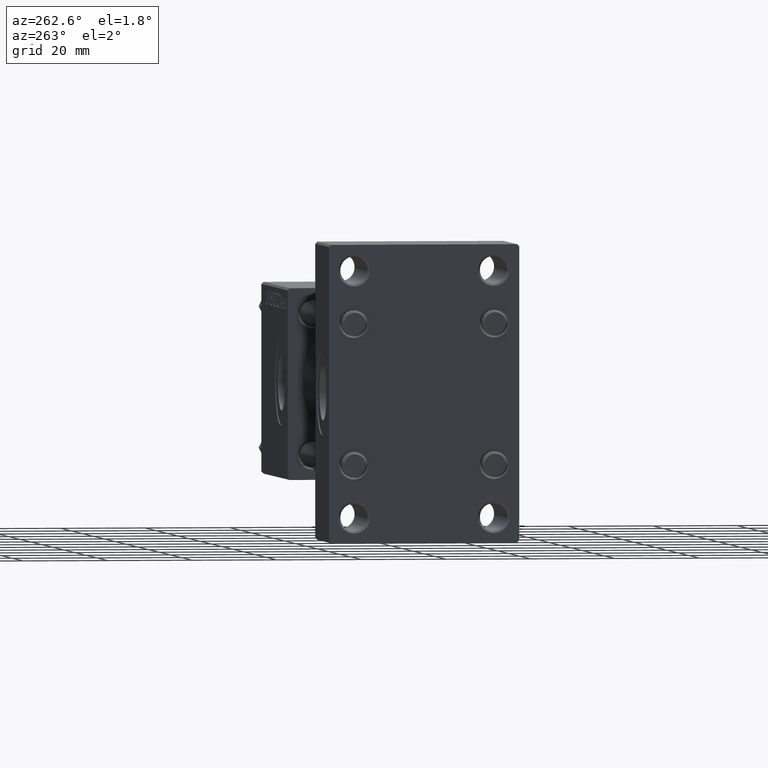
[diagram: clean part render]
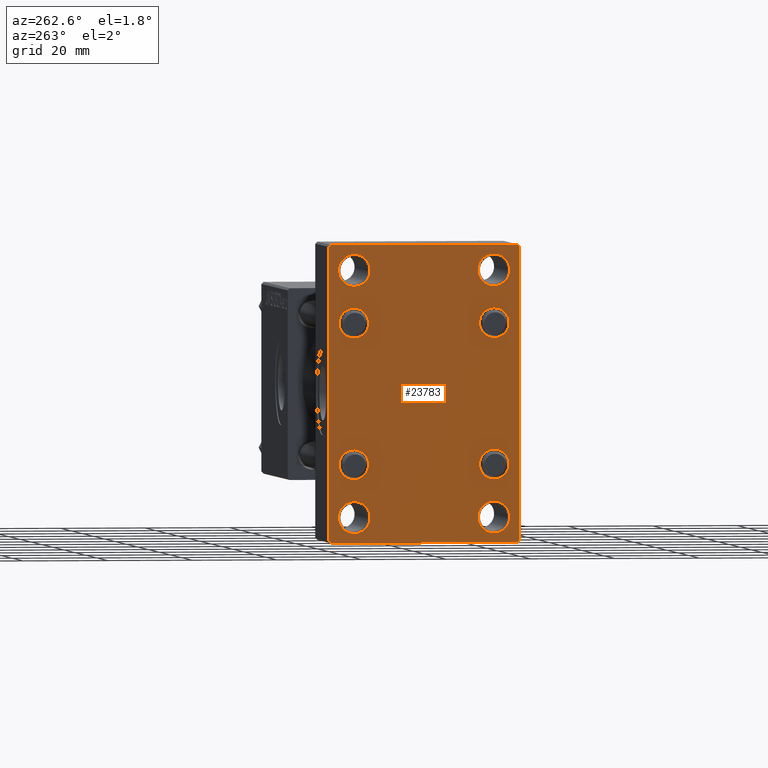
[diagram: same view with one face highlighted and labeled with its STEP entity id]
A machine part, auxiliary view. The second image highlights one B-rep face of the part: STEP entity #23783.
In plain terms, the highlighted planar face has unit normal (-1, 0, 0).
Its self-contained STEP definition (entity closure, byte-faithful):
#120 = AXIS2_PLACEMENT_3D ( 'NONE', #49179, #10794, #15302 ) ;
#330 = EDGE_CURVE ( 'NONE', #11849, #14925, #11964, .T. ) ;
#489 = ORIENTED_EDGE ( 'NONE', *, *, #7855, .T. ) ;
#571 = DIRECTION ( 'NONE',  ( 1.000000000000000000, -0.000000000000000000, 0.000000000000000000 ) ) ;
#663 = CIRCLE ( 'NONE', #28907, 3.749999999999975575 ) ;
#1625 = EDGE_CURVE ( 'NONE', #45959, #25354, #13164, .T. ) ;
#1691 = CIRCLE ( 'NONE', #44467, 3.750000000000044853 ) ;
#1809 = CIRCLE ( 'NONE', #45368, 3.499999999999996003 ) ;
#1812 = FACE_OUTER_BOUND ( 'NONE', #46587, .T. ) ;
#1888 = CARTESIAN_POINT ( 'NONE',  ( 0.000000000000000000, -16.50000000000000711, 28.99999999999998934 ) ) ;
#2526 = EDGE_LOOP ( 'NONE', ( #8048, #39668 ) ) ;
#3007 = CIRCLE ( 'NONE', #36900, 3.499999999999996003 ) ;
#3100 = CARTESIAN_POINT ( 'NONE',  ( 0.000000000000000000, -16.59999999999999076, 20.10000000000000853 ) ) ;
#3126 = EDGE_CURVE ( 'NONE', #14925, #11849, #49965, .T. ) ;
#3517 = VERTEX_POINT ( 'NONE', #14465 ) ;
#3993 = ORIENTED_EDGE ( 'NONE', *, *, #18883, .T. ) ;
#4307 = CARTESIAN_POINT ( 'NONE',  ( 0.000000000000000000, -16.59999999999999076, 16.60000000000000853 ) ) ;
#4829 = CARTESIAN_POINT ( 'NONE',  ( 0.000000000000000000, 28.50000000000030909, 28.49999999999952038 ) ) ;
#5931 = EDGE_CURVE ( 'NONE', #45959, #41223, #21803, .T. ) ;
#6291 = VECTOR ( 'NONE', #11204, 1000.000000000000000 ) ;
#6306 = AXIS2_PLACEMENT_3D ( 'NONE', #26524, #7312, #34336 ) ;
#6469 = CARTESIAN_POINT ( 'NONE',  ( 0.000000000000000000, 16.59999999999999787, -13.10000000000000675 ) ) ;
#6591 = CIRCLE ( 'NONE', #21103, 3.499999999999996003 ) ;
#6609 = VERTEX_POINT ( 'NONE', #47861 ) ;
#6887 = EDGE_LOOP ( 'NONE', ( #10444, #38621 ) ) ;
#6942 = ORIENTED_EDGE ( 'NONE', *, *, #7480, .T. ) ;
#7010 = ORIENTED_EDGE ( 'NONE', *, *, #20053, .T. ) ;
#7049 = AXIS2_PLACEMENT_3D ( 'NONE', #31426, #46855, #27651 ) ;
#7312 = DIRECTION ( 'NONE',  ( 1.000000000000000000, -0.000000000000000000, 0.000000000000000000 ) ) ;
#7318 = DIRECTION ( 'NONE',  ( -0.000000000000000000, 0.000000000000000000, 1.000000000000000000 ) ) ;
#7349 = EDGE_CURVE ( 'NONE', #36578, #41673, #6591, .T. ) ;
#7421 = VERTEX_POINT ( 'NONE', #10858 ) ;
#7480 = EDGE_CURVE ( 'NONE', #8559, #3517, #41651, .T. ) ;
#7523 = CIRCLE ( 'NONE', #41428, 3.499999999999996003 ) ;
#7855 = EDGE_CURVE ( 'NONE', #14047, #22783, #22713, .T. ) ;
#8048 = ORIENTED_EDGE ( 'NONE', *, *, #3126, .T. ) ;
#8218 = DIRECTION ( 'NONE',  ( 0.000000000000000000, -0.7071067811865426878, 0.7071067811865524577 ) ) ;
#8350 = AXIS2_PLACEMENT_3D ( 'NONE', #13451, #34343, #7318 ) ;
#8559 = VERTEX_POINT ( 'NONE', #12280 ) ;
#8766 = DIRECTION ( 'NONE',  ( 0.000000000000000000, 0.000000000000000000, 1.000000000000000000 ) ) ;
#9375 = VECTOR ( 'NONE', #13877, 1000.000000000000000 ) ;
#9396 = FACE_BOUND ( 'NONE', #6887, .T. ) ;
#9772 = DIRECTION ( 'NONE',  ( 1.000000000000000000, -0.000000000000000000, 0.000000000000000000 ) ) ;
#9808 = CARTESIAN_POINT ( 'NONE',  ( 0.000000000000000000, -16.59999999999999076, -20.10000000000000497 ) ) ;
#9951 = EDGE_CURVE ( 'NONE', #32112, #6609, #1691, .T. ) ;
#10106 = ORIENTED_EDGE ( 'NONE', *, *, #9951, .T. ) ;
#10109 = CARTESIAN_POINT ( 'NONE',  ( 0.000000000000000000, 16.49999999999999289, -25.25000000000003553 ) ) ;
#10271 = ORIENTED_EDGE ( 'NONE', *, *, #41743, .T. ) ;
#10364 = CARTESIAN_POINT ( 'NONE',  ( -0.000000000000000000, -28.50000000000015632, 28.49999999999976197 ) ) ;
#10394 = FACE_BOUND ( 'NONE', #27575, .T. ) ;
#10435 = DIRECTION ( 'NONE',  ( 0.000000000000000000, 0.000000000000000000, 1.000000000000000000 ) ) ;
#10444 = ORIENTED_EDGE ( 'NONE', *, *, #39589, .T. ) ;
#10586 = ORIENTED_EDGE ( 'NONE', *, *, #34772, .T. ) ;
#10794 = DIRECTION ( 'NONE',  ( 1.000000000000000000, -0.000000000000000000, 0.000000000000000000 ) ) ;
#10858 = CARTESIAN_POINT ( 'NONE',  ( 0.000000000000000000, 16.59999999999999787, -20.10000000000000142 ) ) ;
#10998 = CIRCLE ( 'NONE', #46472, 3.499999999999996003 ) ;
#11138 = CIRCLE ( 'NONE', #26446, 3.499999999999996003 ) ;
#11204 = DIRECTION ( 'NONE',  ( 0.000000000000000000, -1.000000000000000000, -1.541976423090495387E-16 ) ) ;
#11785 = ORIENTED_EDGE ( 'NONE', *, *, #43939, .T. ) ;
#11849 = VERTEX_POINT ( 'NONE', #17125 ) ;
#11964 = CIRCLE ( 'NONE', #6306, 3.749999999999972022 ) ;
#12257 = CIRCLE ( 'NONE', #29166, 3.749999999999972022 ) ;
#12280 = CARTESIAN_POINT ( 'NONE',  ( 0.000000000000000000, 22.50000000000000355, 34.49999999999999289 ) ) ;
#12567 = CARTESIAN_POINT ( 'NONE',  ( 0.000000000000000000, 16.59999999999999787, 20.10000000000000142 ) ) ;
#12735 = CARTESIAN_POINT ( 'NONE',  ( 0.000000000000000000, 16.49999999999999289, 32.75000000000003553 ) ) ;
#13164 = LINE ( 'NONE', #10364, #21722 ) ;
#13451 = CARTESIAN_POINT ( 'NONE',  ( 0.000000000000000000, 0.000000000000000000, 0.000000000000000000 ) ) ;
#13549 = CARTESIAN_POINT ( 'NONE',  ( 0.000000000000000000, 16.49999999999999289, -29.00000000000000711 ) ) ;
#13877 = DIRECTION ( 'NONE',  ( 0.000000000000000000, -1.000000000000000000, -1.541976423090495387E-16 ) ) ;
#14047 = VERTEX_POINT ( 'NONE', #23000 ) ;
#14465 = CARTESIAN_POINT ( 'NONE',  ( 0.000000000000000000, 22.50000000000000355, -34.49999999999999289 ) ) ;
#14589 = DIRECTION ( 'NONE',  ( 1.000000000000000000, -0.000000000000000000, 0.000000000000000000 ) ) ;
#14824 = DIRECTION ( 'NONE',  ( 1.000000000000000000, -0.000000000000000000, 0.000000000000000000 ) ) ;
#14843 = DIRECTION ( 'NONE',  ( 0.000000000000000000, 0.000000000000000000, 1.000000000000000000 ) ) ;
#14925 = VERTEX_POINT ( 'NONE', #10109 ) ;
#14967 = DIRECTION ( 'NONE',  ( 1.000000000000000000, -0.000000000000000000, 0.000000000000000000 ) ) ;
#14989 = LINE ( 'NONE', #30372, #6291 ) ;
#15302 = DIRECTION ( 'NONE',  ( 0.000000000000000000, 0.000000000000000000, 1.000000000000000000 ) ) ;
#15750 = VERTEX_POINT ( 'NONE', #37843 ) ;
#17077 = DIRECTION ( 'NONE',  ( 0.000000000000000000, 0.000000000000000000, 1.000000000000000000 ) ) ;
#17125 = CARTESIAN_POINT ( 'NONE',  ( 0.000000000000000000, 16.49999999999999289, -32.74999999999997868 ) ) ;
#17445 = CARTESIAN_POINT ( 'NONE',  ( 0.000000000000000000, -21.99999999999998934, 35.00000000000000000 ) ) ;
#17478 = FACE_BOUND ( 'NONE', #48874, .T. ) ;
#17666 = LINE ( 'NONE', #33053, #9375 ) ;
#17705 = EDGE_LOOP ( 'NONE', ( #28931, #10271 ) ) ;
#17831 = CARTESIAN_POINT ( 'NONE',  ( 0.000000000000000000, -16.59999999999999076, -13.10000000000001030 ) ) ;
#17920 = CIRCLE ( 'NONE', #28445, 3.750000000000044853 ) ;
#18642 = VECTOR ( 'NONE', #33149, 1000.000000000000000 ) ;
#18883 = EDGE_CURVE ( 'NONE', #22783, #14047, #12257, .T. ) ;
#19465 = DIRECTION ( 'NONE',  ( 0.000000000000000000, 0.000000000000000000, 1.000000000000000000 ) ) ;
#20053 = EDGE_CURVE ( 'NONE', #35500, #7421, #1809, .T. ) ;
#20248 = DIRECTION ( 'NONE',  ( 0.000000000000000000, 0.7071067811865376918, -0.7071067811865574537 ) ) ;
#20359 = EDGE_CURVE ( 'NONE', #3517, #26579, #44052, .T. ) ;
#20390 = CARTESIAN_POINT ( 'NONE',  ( 0.000000000000000000, 16.59999999999999787, 16.60000000000000497 ) ) ;
#20965 = EDGE_CURVE ( 'NONE', #6609, #32112, #17920, .T. ) ;
#21103 = AXIS2_PLACEMENT_3D ( 'NONE', #21235, #21725, #48265 ) ;
#21235 = CARTESIAN_POINT ( 'NONE',  ( 0.000000000000000000, -16.59999999999999076, -16.60000000000000853 ) ) ;
#21276 = FACE_BOUND ( 'NONE', #31777, .T. ) ;
#21286 = CARTESIAN_POINT ( 'NONE',  ( 0.000000000000000000, 16.59999999999999787, -16.60000000000000497 ) ) ;
#21581 = CARTESIAN_POINT ( 'NONE',  ( 0.000000000000000000, 16.49999999999999289, 28.99999999999998934 ) ) ;
#21722 = VECTOR ( 'NONE', #29049, 1000.000000000000000 ) ;
#21725 = DIRECTION ( 'NONE',  ( 1.000000000000000000, -0.000000000000000000, 0.000000000000000000 ) ) ;
#21803 = LINE ( 'NONE', #32914, #18642 ) ;
#22713 = CIRCLE ( 'NONE', #120, 3.749999999999972022 ) ;
#22783 = VERTEX_POINT ( 'NONE', #25601 ) ;
#23000 = CARTESIAN_POINT ( 'NONE',  ( 0.000000000000000000, -16.50000000000000711, -25.25000000000003553 ) ) ;
#23048 = EDGE_CURVE ( 'NONE', #44565, #44417, #7523, .T. ) ;
#23477 = CARTESIAN_POINT ( 'NONE',  ( 0.000000000000000000, -16.50000000000000711, 32.74999999999996447 ) ) ;
#23504 = VECTOR ( 'NONE', #46186, 1000.000000000000000 ) ;
#23522 = ORIENTED_EDGE ( 'NONE', *, *, #34169, .F. ) ;
#23754 = AXIS2_PLACEMENT_3D ( 'NONE', #48825, #14967, #10435 ) ;
#23783 = ADVANCED_FACE ( 'NONE', ( #10394, #9396, #24805, #40201, #21276, #36653, #17478, #36393, #1812 ), #32620, .T. ) ;
#24275 = DIRECTION ( 'NONE',  ( 1.000000000000000000, -0.000000000000000000, 0.000000000000000000 ) ) ;
#24805 = FACE_BOUND ( 'NONE', #31936, .T. ) ;
#24877 = DIRECTION ( 'NONE',  ( 1.000000000000000000, -0.000000000000000000, 0.000000000000000000 ) ) ;
#25000 = ORIENTED_EDGE ( 'NONE', *, *, #47487, .T. ) ;
#25354 = VERTEX_POINT ( 'NONE', #17445 ) ;
#25601 = CARTESIAN_POINT ( 'NONE',  ( 0.000000000000000000, -16.50000000000000711, -32.74999999999997868 ) ) ;
#26446 = AXIS2_PLACEMENT_3D ( 'NONE', #33997, #14824, #30215 ) ;
#26524 = CARTESIAN_POINT ( 'NONE',  ( 0.000000000000000000, 16.49999999999999289, -29.00000000000000711 ) ) ;
#26579 = VERTEX_POINT ( 'NONE', #27102 ) ;
#27102 = CARTESIAN_POINT ( 'NONE',  ( 0.000000000000000000, 21.99999999999999645, -34.99999999999999289 ) ) ;
#27135 = CARTESIAN_POINT ( 'NONE',  ( 0.000000000000000000, -16.59999999999999076, 13.10000000000001030 ) ) ;
#27558 = DIRECTION ( 'NONE',  ( 0.000000000000000000, 0.000000000000000000, 1.000000000000000000 ) ) ;
#27575 = EDGE_LOOP ( 'NONE', ( #10106, #40786 ) ) ;
#27651 = DIRECTION ( 'NONE',  ( 0.000000000000000000, 0.000000000000000000, 1.000000000000000000 ) ) ;
#27691 = ORIENTED_EDGE ( 'NONE', *, *, #28748, .T. ) ;
#28377 = CARTESIAN_POINT ( 'NONE',  ( 0.000000000000000000, 28.49999999999984013, -28.50000000000024158 ) ) ;
#28445 = AXIS2_PLACEMENT_3D ( 'NONE', #31733, #9772, #43365 ) ;
#28588 = CIRCLE ( 'NONE', #23754, 3.499999999999996003 ) ;
#28748 = EDGE_CURVE ( 'NONE', #15750, #41223, #31447, .T. ) ;
#28845 = DIRECTION ( 'NONE',  ( 1.000000000000000000, -0.000000000000000000, 0.000000000000000000 ) ) ;
#28907 = AXIS2_PLACEMENT_3D ( 'NONE', #1888, #32437, #44831 ) ;
#28931 = ORIENTED_EDGE ( 'NONE', *, *, #37415, .T. ) ;
#29049 = DIRECTION ( 'NONE',  ( -0.000000000000000000, 0.7071067811865426878, 0.7071067811865524577 ) ) ;
#29166 = AXIS2_PLACEMENT_3D ( 'NONE', #35161, #571, #40414 ) ;
#30014 = EDGE_CURVE ( 'NONE', #41673, #36578, #28588, .T. ) ;
#30215 = DIRECTION ( 'NONE',  ( 0.000000000000000000, 0.000000000000000000, 1.000000000000000000 ) ) ;
#30372 = CARTESIAN_POINT ( 'NONE',  ( 0.000000000000000000, 22.50000000000000355, -34.99999999999999289 ) ) ;
#30436 = CIRCLE ( 'NONE', #7049, 3.749999999999975575 ) ;
#31226 = ORIENTED_EDGE ( 'NONE', *, *, #5931, .F. ) ;
#31426 = CARTESIAN_POINT ( 'NONE',  ( 0.000000000000000000, -16.50000000000000711, 28.99999999999998934 ) ) ;
#31447 = LINE ( 'NONE', #35231, #39027 ) ;
#31635 = VECTOR ( 'NONE', #39483, 999.9999999999998863 ) ;
#31733 = CARTESIAN_POINT ( 'NONE',  ( 0.000000000000000000, 16.49999999999999289, 28.99999999999998934 ) ) ;
#31777 = EDGE_LOOP ( 'NONE', ( #48766, #25000 ) ) ;
#31936 = EDGE_LOOP ( 'NONE', ( #489, #3993 ) ) ;
#32112 = VERTEX_POINT ( 'NONE', #12735 ) ;
#32437 = DIRECTION ( 'NONE',  ( 1.000000000000000000, -0.000000000000000000, 0.000000000000000000 ) ) ;
#32546 = ORIENTED_EDGE ( 'NONE', *, *, #38026, .T. ) ;
#32620 = PLANE ( 'NONE',  #8350 ) ;
#32673 = VERTEX_POINT ( 'NONE', #23477 ) ;
#32914 = CARTESIAN_POINT ( 'NONE',  ( 0.000000000000000000, -22.49999999999999645, 35.00000000000000000 ) ) ;
#33053 = CARTESIAN_POINT ( 'NONE',  ( 0.000000000000000000, 22.50000000000000355, 35.00000000000000711 ) ) ;
#33149 = DIRECTION ( 'NONE',  ( 0.000000000000000000, 0.000000000000000000, -1.000000000000000000 ) ) ;
#33997 = CARTESIAN_POINT ( 'NONE',  ( 0.000000000000000000, 16.59999999999999787, 16.60000000000000497 ) ) ;
#34169 = EDGE_CURVE ( 'NONE', #40478, #25354, #17666, .T. ) ;
#34336 = DIRECTION ( 'NONE',  ( 0.000000000000000000, 0.000000000000000000, 1.000000000000000000 ) ) ;
#34343 = DIRECTION ( 'NONE',  ( -1.000000000000000000, 0.000000000000000000, -0.000000000000000000 ) ) ;
#34772 = EDGE_CURVE ( 'NONE', #7421, #35500, #10998, .T. ) ;
#35008 = CARTESIAN_POINT ( 'NONE',  ( 0.000000000000000000, -16.50000000000000711, 25.25000000000001421 ) ) ;
#35161 = CARTESIAN_POINT ( 'NONE',  ( 0.000000000000000000, -16.50000000000000711, -29.00000000000000711 ) ) ;
#35231 = CARTESIAN_POINT ( 'NONE',  ( 0.000000000000000000, -28.50000000000015632, -28.49999999999976197 ) ) ;
#35362 = DIRECTION ( 'NONE',  ( 1.000000000000000000, -0.000000000000000000, 0.000000000000000000 ) ) ;
#35500 = VERTEX_POINT ( 'NONE', #6469 ) ;
#35585 = EDGE_LOOP ( 'NONE', ( #39881, #48455 ) ) ;
#35632 = LINE ( 'NONE', #4829, #39413 ) ;
#36393 = FACE_BOUND ( 'NONE', #17705, .T. ) ;
#36418 = CARTESIAN_POINT ( 'NONE',  ( 0.000000000000000000, -22.49999999999999645, -34.50000000000000000 ) ) ;
#36578 = VERTEX_POINT ( 'NONE', #17831 ) ;
#36653 = FACE_BOUND ( 'NONE', #35585, .T. ) ;
#36900 = AXIS2_PLACEMENT_3D ( 'NONE', #20390, #44134, #8766 ) ;
#37415 = EDGE_CURVE ( 'NONE', #49940, #49992, #3007, .T. ) ;
#37437 = ORIENTED_EDGE ( 'NONE', *, *, #1625, .T. ) ;
#37705 = EDGE_CURVE ( 'NONE', #49018, #32673, #30436, .T. ) ;
#37843 = CARTESIAN_POINT ( 'NONE',  ( 0.000000000000000000, -21.99999999999998934, -35.00000000000000000 ) ) ;
#37846 = CARTESIAN_POINT ( 'NONE',  ( 0.000000000000000000, 22.00000000000000355, 35.00000000000000711 ) ) ;
#37850 = CARTESIAN_POINT ( 'NONE',  ( 0.000000000000000000, 22.50000000000000355, 35.00000000000000711 ) ) ;
#38026 = EDGE_CURVE ( 'NONE', #26579, #15750, #14989, .T. ) ;
#38621 = ORIENTED_EDGE ( 'NONE', *, *, #37705, .T. ) ;
#38673 = CARTESIAN_POINT ( 'NONE',  ( 0.000000000000000000, -16.59999999999999076, 16.60000000000000853 ) ) ;
#39027 = VECTOR ( 'NONE', #8218, 1000.000000000000000 ) ;
#39413 = VECTOR ( 'NONE', #20248, 999.9999999999998863 ) ;
#39483 = DIRECTION ( 'NONE',  ( -0.000000000000000000, -0.7071067811865525687, -0.7071067811865425767 ) ) ;
#39589 = EDGE_CURVE ( 'NONE', #32673, #49018, #663, .T. ) ;
#39668 = ORIENTED_EDGE ( 'NONE', *, *, #330, .T. ) ;
#39775 = CARTESIAN_POINT ( 'NONE',  ( 0.000000000000000000, -22.49999999999999645, 34.50000000000000000 ) ) ;
#39881 = ORIENTED_EDGE ( 'NONE', *, *, #7349, .T. ) ;
#40201 = FACE_BOUND ( 'NONE', #2526, .T. ) ;
#40324 = CARTESIAN_POINT ( 'NONE',  ( 0.000000000000000000, 16.59999999999999787, 13.10000000000000675 ) ) ;
#40414 = DIRECTION ( 'NONE',  ( 0.000000000000000000, 0.000000000000000000, 1.000000000000000000 ) ) ;
#40478 = VERTEX_POINT ( 'NONE', #37846 ) ;
#40538 = CIRCLE ( 'NONE', #46999, 3.499999999999996003 ) ;
#40786 = ORIENTED_EDGE ( 'NONE', *, *, #20965, .T. ) ;
#41223 = VERTEX_POINT ( 'NONE', #36418 ) ;
#41428 = AXIS2_PLACEMENT_3D ( 'NONE', #38673, #24275, #27558 ) ;
#41651 = LINE ( 'NONE', #37850, #23504 ) ;
#41673 = VERTEX_POINT ( 'NONE', #9808 ) ;
#41743 = EDGE_CURVE ( 'NONE', #49992, #49940, #11138, .T. ) ;
#41936 = AXIS2_PLACEMENT_3D ( 'NONE', #13549, #48641, #17077 ) ;
#43048 = ORIENTED_EDGE ( 'NONE', *, *, #20359, .T. ) ;
#43365 = DIRECTION ( 'NONE',  ( 0.000000000000000000, 0.000000000000000000, 1.000000000000000000 ) ) ;
#43939 = EDGE_CURVE ( 'NONE', #40478, #8559, #35632, .T. ) ;
#44052 = LINE ( 'NONE', #28377, #31635 ) ;
#44134 = DIRECTION ( 'NONE',  ( 1.000000000000000000, -0.000000000000000000, 0.000000000000000000 ) ) ;
#44417 = VERTEX_POINT ( 'NONE', #27135 ) ;
#44467 = AXIS2_PLACEMENT_3D ( 'NONE', #21581, #24877, #44576 ) ;
#44565 = VERTEX_POINT ( 'NONE', #3100 ) ;
#44576 = DIRECTION ( 'NONE',  ( 0.000000000000000000, 0.000000000000000000, 1.000000000000000000 ) ) ;
#44831 = DIRECTION ( 'NONE',  ( 0.000000000000000000, 0.000000000000000000, 1.000000000000000000 ) ) ;
#45368 = AXIS2_PLACEMENT_3D ( 'NONE', #49203, #14589, #14843 ) ;
#45959 = VERTEX_POINT ( 'NONE', #39775 ) ;
#46186 = DIRECTION ( 'NONE',  ( 0.000000000000000000, 0.000000000000000000, -1.000000000000000000 ) ) ;
#46472 = AXIS2_PLACEMENT_3D ( 'NONE', #21286, #28845, #48798 ) ;
#46587 = EDGE_LOOP ( 'NONE', ( #6942, #43048, #32546, #27691, #31226, #37437, #23522, #11785 ) ) ;
#46855 = DIRECTION ( 'NONE',  ( 1.000000000000000000, -0.000000000000000000, 0.000000000000000000 ) ) ;
#46999 = AXIS2_PLACEMENT_3D ( 'NONE', #4307, #35362, #19465 ) ;
#47487 = EDGE_CURVE ( 'NONE', #44417, #44565, #40538, .T. ) ;
#47861 = CARTESIAN_POINT ( 'NONE',  ( 0.000000000000000000, 16.49999999999999289, 25.24999999999994671 ) ) ;
#48265 = DIRECTION ( 'NONE',  ( 0.000000000000000000, 0.000000000000000000, 1.000000000000000000 ) ) ;
#48455 = ORIENTED_EDGE ( 'NONE', *, *, #30014, .T. ) ;
#48641 = DIRECTION ( 'NONE',  ( 1.000000000000000000, -0.000000000000000000, 0.000000000000000000 ) ) ;
#48766 = ORIENTED_EDGE ( 'NONE', *, *, #23048, .T. ) ;
#48798 = DIRECTION ( 'NONE',  ( 0.000000000000000000, 0.000000000000000000, 1.000000000000000000 ) ) ;
#48825 = CARTESIAN_POINT ( 'NONE',  ( 0.000000000000000000, -16.59999999999999076, -16.60000000000000853 ) ) ;
#48874 = EDGE_LOOP ( 'NONE', ( #7010, #10586 ) ) ;
#49018 = VERTEX_POINT ( 'NONE', #35008 ) ;
#49179 = CARTESIAN_POINT ( 'NONE',  ( 0.000000000000000000, -16.50000000000000711, -29.00000000000000711 ) ) ;
#49203 = CARTESIAN_POINT ( 'NONE',  ( 0.000000000000000000, 16.59999999999999787, -16.60000000000000497 ) ) ;
#49940 = VERTEX_POINT ( 'NONE', #12567 ) ;
#49965 = CIRCLE ( 'NONE', #41936, 3.749999999999972022 ) ;
#49992 = VERTEX_POINT ( 'NONE', #40324 ) ;